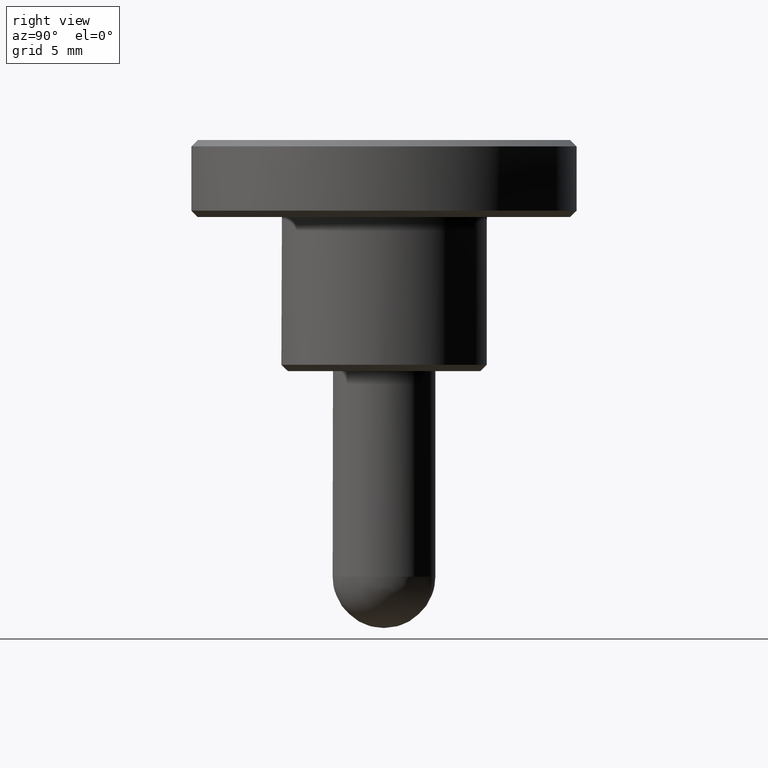
[diagram: clean part render]
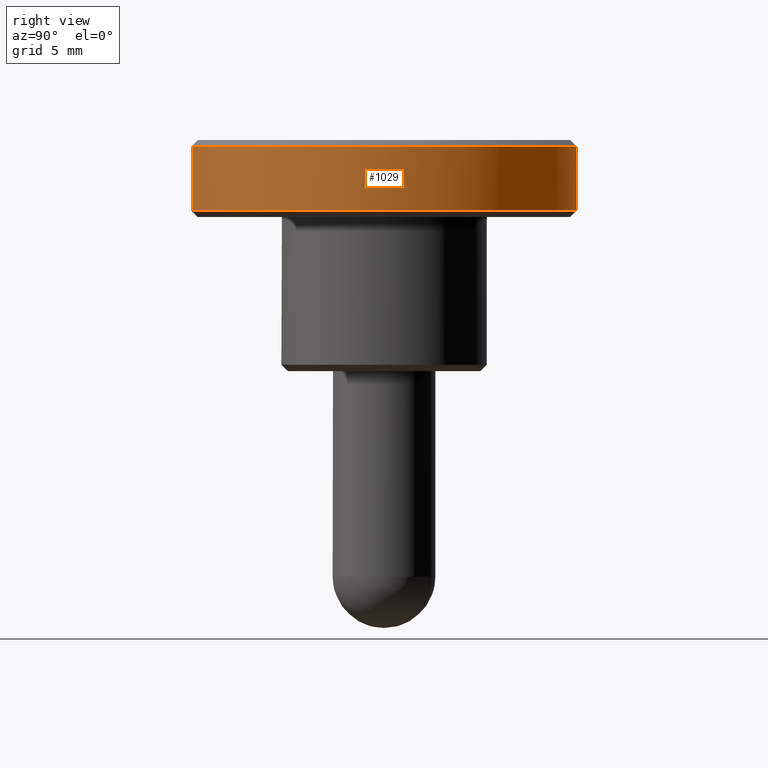
[diagram: same view with one face highlighted and labeled with its STEP entity id]
A machine part, right view. The second image highlights one B-rep face of the part: STEP entity #1029.
In plain terms, the highlighted face is a freeform B-spline surface patch.
Its self-contained STEP definition (entity closure, byte-faithful):
#150=CARTESIAN_POINT('',(1.861913014048360,-14.883994085193240,17.500000000000082));
#151=VERTEX_POINT('',#150);
#167=CARTESIAN_POINT('',(15.0,0.0,17.500000000000000));
#168=VERTEX_POINT('',#167);
#169=CARTESIAN_POINT('',(15.0,0.0,17.500000000000000));
#170=CARTESIAN_POINT('',(15.000000000000004,-13.240485293211602,17.500000000000000));
#171=CARTESIAN_POINT('',(1.861913014048360,-14.883994085193237,17.500000000000075));
#179=(BOUNDED_CURVE()B_SPLINE_CURVE(2,(#169,#170,#171),.UNSPECIFIED.,.F.,.U.)B_SPLINE_CURVE_WITH_KNOTS((3,3),(0.500000000000000,0.728526150538448),.UNSPECIFIED.)CURVE()GEOMETRIC_REPRESENTATION_ITEM()RATIONAL_B_SPLINE_CURVE((1.0,0.732264960742985,0.954005584571298))REPRESENTATION_ITEM(''));
#180=EDGE_CURVE('',#168,#151,#179,.T.);
#182=CARTESIAN_POINT('',(-0.130886080069205,14.999428950260111,17.500000000000028));
#183=VERTEX_POINT('',#182);
#184=CARTESIAN_POINT('',(-0.130886080069205,14.999428950260111,17.500000000000025));
#185=CARTESIAN_POINT('',(-0.065444285766026,14.999999999999996,17.500000000000000));
#186=CARTESIAN_POINT('',(0.0,15.0,17.500000000000000));
#187=CARTESIAN_POINT('',(14.999999999999996,14.999999999999996,17.500000000000000));
#188=CARTESIAN_POINT('',(15.0,0.0,17.500000000000000));
#196=(BOUNDED_CURVE()B_SPLINE_CURVE(2,(#184,#185,#186,#187,#188),.UNSPECIFIED.,.F.,.U.)B_SPLINE_CURVE_WITH_KNOTS((3,2,3),(0.248460246025718,0.250000000000000,0.500000000000000),.UNSPECIFIED.)CURVE()GEOMETRIC_REPRESENTATION_ITEM()RATIONAL_B_SPLINE_CURVE((0.996414352934588,0.998196066009167,1.0,0.707106781186547,1.0))REPRESENTATION_ITEM(''));
#197=EDGE_CURVE('',#183,#168,#196,.T.);
#361=CARTESIAN_POINT('',(-0.130885628363119,14.999428954201360,12.500000000000000));
#362=VERTEX_POINT('',#361);
#376=CARTESIAN_POINT('',(15.0,0.0,12.500000000000000));
#377=VERTEX_POINT('',#376);
#378=CARTESIAN_POINT('',(15.0,0.0,12.500000000000000));
#379=CARTESIAN_POINT('',(14.999999999999996,14.999999999999996,12.499999999999998));
#380=CARTESIAN_POINT('',(0.0,15.0,12.500000000000000));
#381=CARTESIAN_POINT('',(-0.065444059900086,14.999999999999996,12.499999999999996));
#382=CARTESIAN_POINT('',(-0.130885628363119,14.999428954201353,12.499999999999998));
#390=(BOUNDED_CURVE()B_SPLINE_CURVE(2,(#378,#379,#380,#381,#382),.UNSPECIFIED.,.F.,.U.)B_SPLINE_CURVE_WITH_KNOTS((3,2,3),(0.500000000000000,0.750000000000000,0.751539748669761),.UNSPECIFIED.)CURVE()GEOMETRIC_REPRESENTATION_ITEM()RATIONAL_B_SPLINE_CURVE((1.0,0.707106781186547,1.0,0.998196072223800,0.996414365210750))REPRESENTATION_ITEM(''));
#391=EDGE_CURVE('',#377,#362,#390,.T.);
#393=CARTESIAN_POINT('',(12.282991690659861,-8.609768587319159,12.500000000000201));
#394=VERTEX_POINT('',#393);
#395=CARTESIAN_POINT('',(12.282991690659863,-8.609768587319159,12.500000000000197));
#396=CARTESIAN_POINT('',(14.999999999999995,-4.733591179228077,12.500000000000007));
#397=CARTESIAN_POINT('',(15.0,0.0,12.500000000000000));
#405=(BOUNDED_CURVE()B_SPLINE_CURVE(2,(#395,#396,#397),.UNSPECIFIED.,.F.,.U.)B_SPLINE_CURVE_WITH_KNOTS((3,3),(0.401326273797028,0.500000000000000),.UNSPECIFIED.)CURVE()GEOMETRIC_REPRESENTATION_ITEM()RATIONAL_B_SPLINE_CURVE((0.860049271925822,0.884396538880376,1.0))REPRESENTATION_ITEM(''));
#406=EDGE_CURVE('',#394,#377,#405,.T.);
#444=CARTESIAN_POINT('',(1.861909287597829,-14.883994551350780,12.500000000000000));
#445=VERTEX_POINT('',#444);
#446=CARTESIAN_POINT('',(1.861909287597830,-14.883994551350776,12.500000000000000));
#447=CARTESIAN_POINT('',(8.463973537194306,-14.058111103115637,12.500000000000004));
#448=CARTESIAN_POINT('',(12.282991690659852,-8.609768587319159,12.500000000000201));
#456=(BOUNDED_CURVE()B_SPLINE_CURVE(2,(#446,#447,#448),.UNSPECIFIED.,.F.,.U.)B_SPLINE_CURVE_WITH_KNOTS((3,3),(0.271473807238290,0.401326273797027),.UNSPECIFIED.)CURVE()GEOMETRIC_REPRESENTATION_ITEM()RATIONAL_B_SPLINE_CURVE((0.954005666510404,0.828008800873685,0.860049271925822))REPRESENTATION_ITEM(''));
#457=EDGE_CURVE('',#445,#394,#456,.T.);
#994=CARTESIAN_POINT('',(1.861920031197439,-14.883993207383075,12.374999999999993));
#995=CARTESIAN_POINT('',(15.115992457536670,-13.225968871998314,12.374999999999998));
#996=CARTESIAN_POINT('',(14.999428845962560,0.130898032475608,12.375000000000000));
#997=CARTESIAN_POINT('',(14.868530813486954,15.130326878438172,12.374999999999998));
#998=CARTESIAN_POINT('',(-0.130898032475608,14.999428845962560,12.375000000000000));
#999=CARTESIAN_POINT('',(1.861920031197439,-14.883993207383075,17.628125000000004));
#1000=CARTESIAN_POINT('',(15.115992457536670,-13.225968871998314,17.628125000000011));
#1001=CARTESIAN_POINT('',(14.999428845962560,0.130898032475608,17.628125000000001));
#1002=CARTESIAN_POINT('',(14.868530813486954,15.130326878438172,17.628125000000001));
#1003=CARTESIAN_POINT('',(-0.130898032475608,14.999428845962560,17.628125000000001));
#1011=(BOUNDED_SURFACE()B_SPLINE_SURFACE(2,1,((#994,#999),(#995,#1000),(#996,#1001),(#997,#1002),(#998,#1003)),.UNSPECIFIED.,.F.,.F.,.U.)B_SPLINE_SURFACE_WITH_KNOTS((3,2,3),(2,2),(0.0,22.864588642994839,47.717402385380531),(0.0,5.253125000000007),.UNSPECIFIED.)GEOMETRIC_REPRESENTATION_ITEM()RATIONAL_B_SPLINE_SURFACE(((0.956886118190660,0.956886118190660),(0.730538238691624,0.730538238691624),(1.0,1.0),(0.707106781186548,0.707106781186548),(1.0,1.0)))REPRESENTATION_ITEM('')SURFACE());
#1012=ORIENTED_EDGE('',*,*,#180,.T.);
#1013=CARTESIAN_POINT('',(1.861909287597829,-14.883994551350780,12.500000000000000));
#1014=CARTESIAN_POINT('',(1.861913014048360,-14.883994085193240,17.500000000000082));
#1015=QUASI_UNIFORM_CURVE('',1,(#1013,#1014),.UNSPECIFIED.,.F.,.U.);
#1016=EDGE_CURVE('',#445,#151,#1015,.T.);
#1017=ORIENTED_EDGE('',*,*,#1016,.F.);
#1018=ORIENTED_EDGE('',*,*,#457,.T.);
#1019=ORIENTED_EDGE('',*,*,#406,.T.);
#1020=ORIENTED_EDGE('',*,*,#391,.T.);
#1021=CARTESIAN_POINT('',(-0.130885628363119,14.999428954201360,12.500000000000000));
#1022=CARTESIAN_POINT('',(-0.130886080069205,14.999428950260111,17.500000000000028));
#1023=QUASI_UNIFORM_CURVE('',1,(#1021,#1022),.UNSPECIFIED.,.F.,.U.);
#1024=EDGE_CURVE('',#362,#183,#1023,.T.);
#1025=ORIENTED_EDGE('',*,*,#1024,.T.);
#1026=ORIENTED_EDGE('',*,*,#197,.T.);
#1027=EDGE_LOOP('',(#1012,#1017,#1018,#1019,#1020,#1025,#1026));
#1028=FACE_OUTER_BOUND('',#1027,.T.);
#1029=ADVANCED_FACE('',(#1028),#1011,.T.);